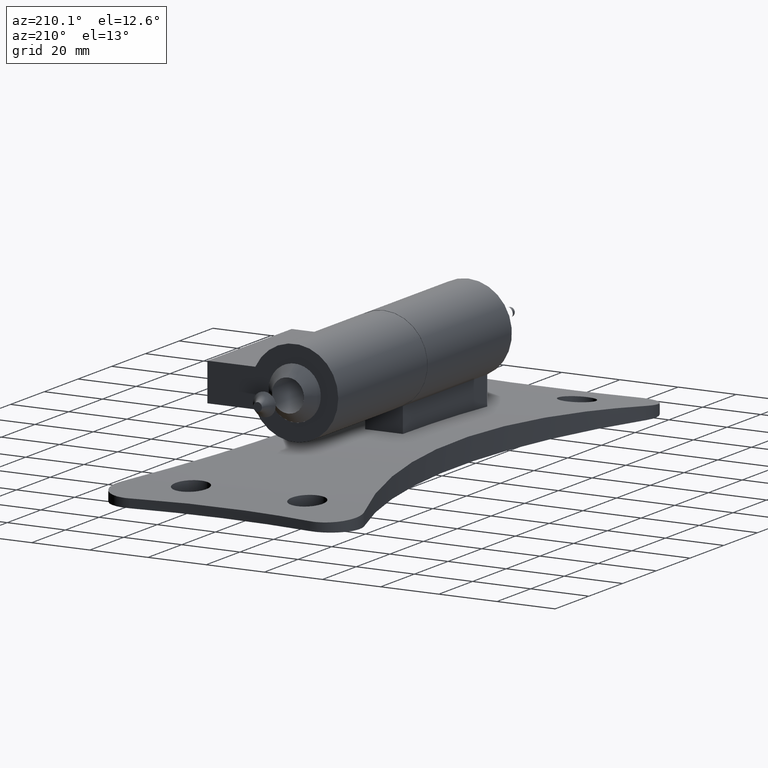
[diagram: clean part render]
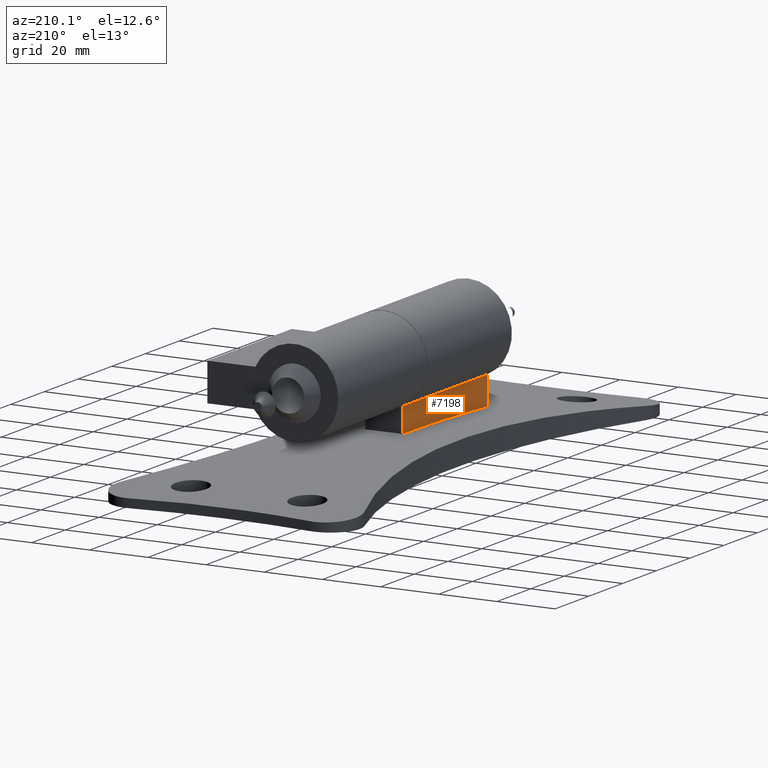
[diagram: same view with one face highlighted and labeled with its STEP entity id]
A machine part, auxiliary view. The second image highlights one B-rep face of the part: STEP entity #7198.
In plain terms, the highlighted planar face has unit normal (1, 0, 0).
Its self-contained STEP definition (entity closure, byte-faithful):
#100 = LINE ( 'NONE', #1605, #1885 ) ;
#148 = PLANE ( 'NONE',  #11480 ) ;
#264 = EDGE_CURVE ( 'NONE', #3218, #1017, #7257, .T. ) ;
#621 = FACE_OUTER_BOUND ( 'NONE', #3338, .T. ) ;
#750 = CARTESIAN_POINT ( 'NONE',  ( -6.499999999999992895, -50.00000000000000000, 16.48149416540422152 ) ) ;
#1017 = VERTEX_POINT ( 'NONE', #11259 ) ;
#1122 = AXIS2_PLACEMENT_3D ( 'NONE', #8828, #3316, #10635 ) ;
#1305 = LINE ( 'NONE', #750, #7776 ) ;
#1605 = CARTESIAN_POINT ( 'NONE',  ( -6.499999999999998224, 0.000000000000000000, 16.48149416540422507 ) ) ;
#1632 = DIRECTION ( 'NONE',  ( 0.000000000000000000, 1.000000000000000000, 0.000000000000000000 ) ) ;
#1885 = VECTOR ( 'NONE', #2466, 1000.000000000000000 ) ;
#2214 = CARTESIAN_POINT ( 'NONE',  ( -6.500000000000000000, 0.000000000000000000, 8.000000000000007105 ) ) ;
#2466 = DIRECTION ( 'NONE',  ( 2.045304096361578189E-16, -0.000000000000000000, 1.000000000000000000 ) ) ;
#3218 = VERTEX_POINT ( 'NONE', #5735 ) ;
#3316 = DIRECTION ( 'NONE',  ( 1.000000000000000000, -0.000000000000000000, 0.000000000000000000 ) ) ;
#3338 = EDGE_LOOP ( 'NONE', ( #10729, #10366, #8569, #9565 ) ) ;
#3620 = EDGE_CURVE ( 'NONE', #3964, #3218, #6507, .T. ) ;
#3964 = VERTEX_POINT ( 'NONE', #2214 ) ;
#4317 = DIRECTION ( 'NONE',  ( -0.000000000000000000, -0.000000000000000000, 1.000000000000000000 ) ) ;
#4469 = CARTESIAN_POINT ( 'NONE',  ( -6.499999999999992895, 0.000000000000000000, 16.48149416540422152 ) ) ;
#4595 = VECTOR ( 'NONE', #4317, 1000.000000000000000 ) ;
#5461 = DIRECTION ( 'NONE',  ( 1.000000000000000000, -0.000000000000000000, 0.000000000000000000 ) ) ;
#5735 = CARTESIAN_POINT ( 'NONE',  ( -6.499999999999999112, -49.99999999999997868, 6.690304111018008371 ) ) ;
#6462 = EDGE_CURVE ( 'NONE', #3964, #9263, #100, .T. ) ;
#6507 = CIRCLE ( 'NONE', #1122, 955.0748858447125258 ) ;
#6980 = EDGE_CURVE ( 'NONE', #1017, #9263, #1305, .T. ) ;
#7186 = DIRECTION ( 'NONE',  ( 0.000000000000000000, 0.000000000000000000, -1.000000000000000000 ) ) ;
#7198 = ADVANCED_FACE ( 'NONE', ( #621 ), #148, .F. ) ;
#7257 = LINE ( 'NONE', #9839, #4595 ) ;
#7776 = VECTOR ( 'NONE', #1632, 1000.000000000000000 ) ;
#8152 = CARTESIAN_POINT ( 'NONE',  ( -6.500000000000000000, -50.00000000000000000, -500000.0000000000582 ) ) ;
#8569 = ORIENTED_EDGE ( 'NONE', *, *, #6462, .F. ) ;
#8828 = CARTESIAN_POINT ( 'NONE',  ( -6.499999999999999112, 0.000000000000000000, -947.0748858447125258 ) ) ;
#9263 = VERTEX_POINT ( 'NONE', #4469 ) ;
#9565 = ORIENTED_EDGE ( 'NONE', *, *, #3620, .T. ) ;
#9839 = CARTESIAN_POINT ( 'NONE',  ( -6.500000000000000000, -50.00000000000000000, -500000.0000000000582 ) ) ;
#10366 = ORIENTED_EDGE ( 'NONE', *, *, #6980, .T. ) ;
#10635 = DIRECTION ( 'NONE',  ( 0.000000000000000000, 0.000000000000000000, -1.000000000000000000 ) ) ;
#10729 = ORIENTED_EDGE ( 'NONE', *, *, #264, .T. ) ;
#11259 = CARTESIAN_POINT ( 'NONE',  ( -6.499999999999992895, -50.00000000000000000, 16.48149416540422152 ) ) ;
#11480 = AXIS2_PLACEMENT_3D ( 'NONE', #8152, #5461, #7186 ) ;